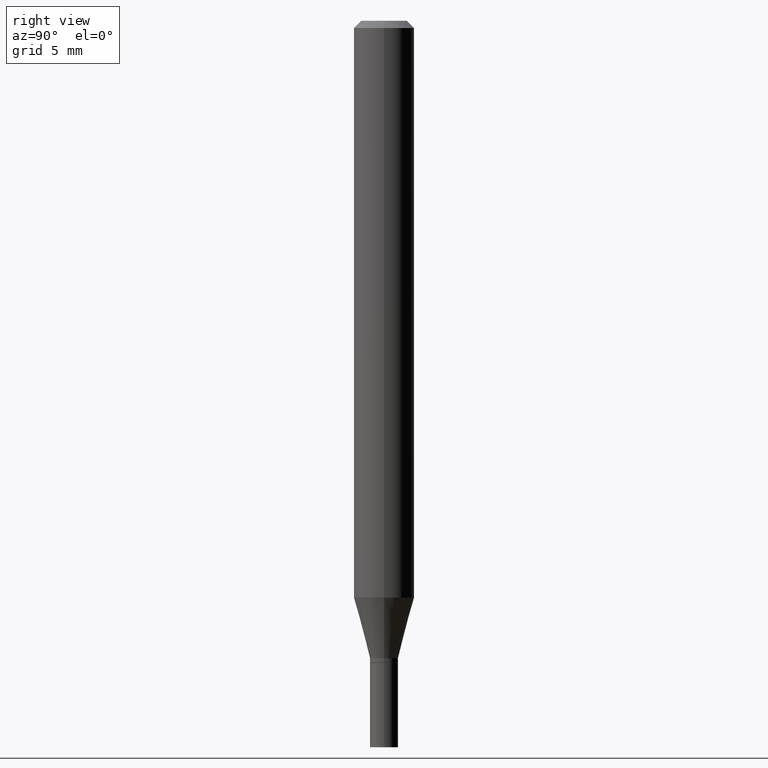
[diagram: clean part render]
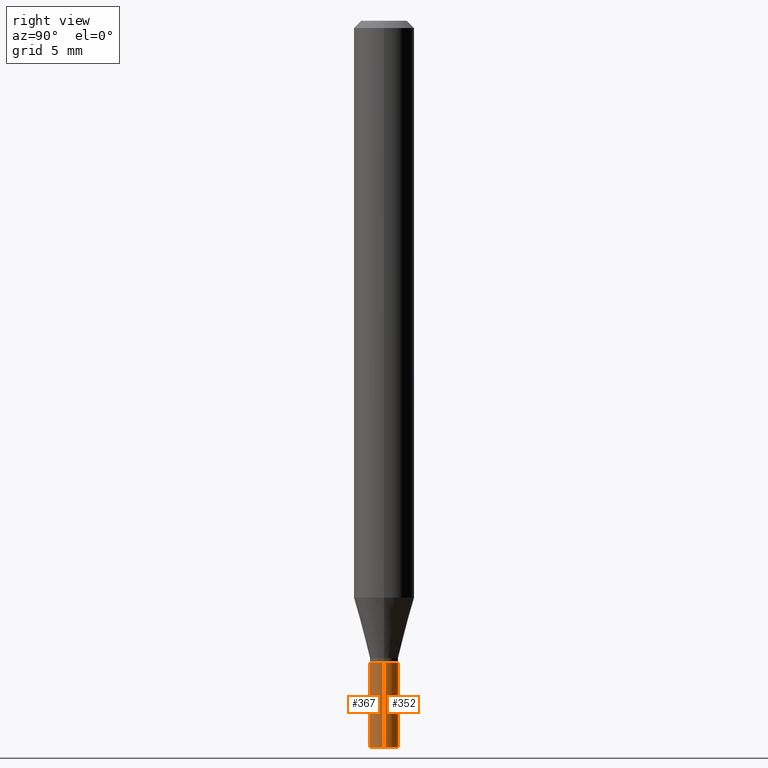
[diagram: same view with one multi-face feature highlighted, each face labeled with its STEP entity id]
A machine part, right view. The highlighted faces form ONE feature: a constant-radius fillet chain: 2 tangent blend faces with common blend radius 0.7366 mm. The faces share edges in the B-rep.
Their STEP definitions:
[1] entity #367 (Cylinder):
#12 = DIRECTION ( 'NONE',  ( -2.445468806185136597E-29, 3.491481338843145583E-15, 1.000000000000000000 ) ) ;
#30 = CARTESIAN_POINT ( 'NONE',  ( -0.02900000000000000147, -4.727405738414936275E-15, -1.326000000000000290 ) ) ;
#31 = DIRECTION ( 'NONE',  ( 1.000000000000000000, -6.982962677686265922E-15, 0.000000000000000000 ) ) ;
#33 = CARTESIAN_POINT ( 'NONE',  ( 0.02900000000000000147, -4.832210172958914360E-15, -1.326000000000000290 ) ) ;
#38 = EDGE_LOOP ( 'NONE', ( #296, #205, #95, #102 ) ) ;
#54 = DIRECTION ( 'NONE',  ( -2.445468806185136877E-29, 3.491481338843145188E-15, 1.000000000000000000 ) ) ;
#70 = CARTESIAN_POINT ( 'NONE',  ( -0.02900000000000000147, 2.060573933704290644E-16, -1.426491176173922626E-30 ) ) ;
#86 = CARTESIAN_POINT ( 'NONE',  ( -0.02900000000000000147, -4.727405738414936275E-15, -1.500000000000000222 ) ) ;
#87 = VERTEX_POINT ( 'NONE', #30 ) ;
#93 = FACE_OUTER_BOUND ( 'NONE', #38, .T. ) ;
#95 = ORIENTED_EDGE ( 'NONE', *, *, #319, .T. ) ;
#102 = ORIENTED_EDGE ( 'NONE', *, *, #309, .F. ) ;
#116 = CARTESIAN_POINT ( 'NONE',  ( 0.02900000000000000147, -2.025059176529017356E-16, 1.414091264980821422E-30 ) ) ;
#123 = CARTESIAN_POINT ( 'NONE',  ( 0.000000000000000000, 0.000000000000000000, 0.000000000000000000 ) ) ;
#129 = AXIS2_PLACEMENT_3D ( 'NONE', #392, #357, #31 ) ;
#131 = VERTEX_POINT ( 'NONE', #323 ) ;
#138 = VERTEX_POINT ( 'NONE', #33 ) ;
#144 = VECTOR ( 'NONE', #54, 39.37007874015748143 ) ;
#170 = CIRCLE ( 'NONE', #351, 0.02900000000000000147 ) ;
#187 = DIRECTION ( 'NONE',  ( -2.445468806185136877E-29, 3.491481338843145188E-15, 1.000000000000000000 ) ) ;
#203 = AXIS2_PLACEMENT_3D ( 'NONE', #123, #340, #272 ) ;
#204 = VECTOR ( 'NONE', #187, 39.37007874015748143 ) ;
#205 = ORIENTED_EDGE ( 'NONE', *, *, #446, .T. ) ;
#232 = LINE ( 'NONE', #116, #144 ) ;
#240 = CARTESIAN_POINT ( 'NONE',  ( 3.242691637001491818E-29, -4.629704255306012058E-15, -1.326000000000000290 ) ) ;
#272 = DIRECTION ( 'NONE',  ( 1.000000000000000000, -6.982962677686266711E-15, 4.876176775795935793E-29 ) ) ;
#282 = CIRCLE ( 'NONE', #129, 0.02900000000000000147 ) ;
#296 = ORIENTED_EDGE ( 'NONE', *, *, #436, .F. ) ;
#309 = EDGE_CURVE ( 'NONE', #87, #138, #170, .T. ) ;
#319 = EDGE_CURVE ( 'NONE', #131, #138, #232, .T. ) ;
#323 = CARTESIAN_POINT ( 'NONE',  ( 0.02900000000000000147, -5.439727925917620479E-15, -1.500000000000000222 ) ) ;
#340 = DIRECTION ( 'NONE',  ( -2.445468806185136597E-29, 3.491481338843145583E-15, 1.000000000000000000 ) ) ;
#348 = VERTEX_POINT ( 'NONE', #86 ) ;
#351 = AXIS2_PLACEMENT_3D ( 'NONE', #240, #12, #410 ) ;
#357 = DIRECTION ( 'NONE',  ( -2.445468806185136597E-29, 3.491481338843145583E-15, 1.000000000000000000 ) ) ;
#361 = LINE ( 'NONE', #70, #204 ) ;
#367 = ADVANCED_FACE ( 'NONE', ( #93 ), #444, .T. ) ;
#392 = CARTESIAN_POINT ( 'NONE',  ( 3.668203209277704895E-29, -5.237222008264718177E-15, -1.500000000000000222 ) ) ;
#410 = DIRECTION ( 'NONE',  ( 1.000000000000000000, -6.982962677686265922E-15, 0.000000000000000000 ) ) ;
#436 = EDGE_CURVE ( 'NONE', #348, #87, #361, .T. ) ;
#444 = CYLINDRICAL_SURFACE ( 'NONE', #203, 0.02900000000000000147 ) ;
#446 = EDGE_CURVE ( 'NONE', #348, #131, #282, .T. ) ;
[2] entity #352 (Cylinder):
#25 = ORIENTED_EDGE ( 'NONE', *, *, #319, .F. ) ;
#28 = CARTESIAN_POINT ( 'NONE',  ( 3.242691637001491818E-29, -4.629704255306012058E-15, -1.326000000000000290 ) ) ;
#30 = CARTESIAN_POINT ( 'NONE',  ( -0.02900000000000000147, -4.727405738414936275E-15, -1.326000000000000290 ) ) ;
#33 = CARTESIAN_POINT ( 'NONE',  ( 0.02900000000000000147, -4.832210172958914360E-15, -1.326000000000000290 ) ) ;
#34 = CIRCLE ( 'NONE', #111, 0.02900000000000000147 ) ;
#54 = DIRECTION ( 'NONE',  ( -2.445468806185136877E-29, 3.491481338843145188E-15, 1.000000000000000000 ) ) ;
#70 = CARTESIAN_POINT ( 'NONE',  ( -0.02900000000000000147, 2.060573933704290644E-16, -1.426491176173922626E-30 ) ) ;
#86 = CARTESIAN_POINT ( 'NONE',  ( -0.02900000000000000147, -4.727405738414936275E-15, -1.500000000000000222 ) ) ;
#87 = VERTEX_POINT ( 'NONE', #30 ) ;
#92 = EDGE_CURVE ( 'NONE', #131, #348, #34, .T. ) ;
#111 = AXIS2_PLACEMENT_3D ( 'NONE', #462, #145, #393 ) ;
#116 = CARTESIAN_POINT ( 'NONE',  ( 0.02900000000000000147, -2.025059176529017356E-16, 1.414091264980821422E-30 ) ) ;
#124 = EDGE_CURVE ( 'NONE', #138, #87, #164, .T. ) ;
#131 = VERTEX_POINT ( 'NONE', #323 ) ;
#138 = VERTEX_POINT ( 'NONE', #33 ) ;
#144 = VECTOR ( 'NONE', #54, 39.37007874015748143 ) ;
#145 = DIRECTION ( 'NONE',  ( -2.445468806185136597E-29, 3.491481338843145583E-15, 1.000000000000000000 ) ) ;
#164 = CIRCLE ( 'NONE', #416, 0.02900000000000000147 ) ;
#166 = DIRECTION ( 'NONE',  ( 1.000000000000000000, -6.982962677686266711E-15, 4.876176775795935793E-29 ) ) ;
#187 = DIRECTION ( 'NONE',  ( -2.445468806185136877E-29, 3.491481338843145188E-15, 1.000000000000000000 ) ) ;
#204 = VECTOR ( 'NONE', #187, 39.37007874015748143 ) ;
#211 = AXIS2_PLACEMENT_3D ( 'NONE', #229, #274, #166 ) ;
#214 = DIRECTION ( 'NONE',  ( 1.000000000000000000, -6.982962677686265922E-15, 0.000000000000000000 ) ) ;
#229 = CARTESIAN_POINT ( 'NONE',  ( 0.000000000000000000, 0.000000000000000000, 0.000000000000000000 ) ) ;
#232 = LINE ( 'NONE', #116, #144 ) ;
#235 = FACE_OUTER_BOUND ( 'NONE', #445, .T. ) ;
#244 = ORIENTED_EDGE ( 'NONE', *, *, #436, .T. ) ;
#274 = DIRECTION ( 'NONE',  ( -2.445468806185136597E-29, 3.491481338843145583E-15, 1.000000000000000000 ) ) ;
#278 = CYLINDRICAL_SURFACE ( 'NONE', #211, 0.02900000000000000147 ) ;
#280 = ORIENTED_EDGE ( 'NONE', *, *, #124, .F. ) ;
#319 = EDGE_CURVE ( 'NONE', #131, #138, #232, .T. ) ;
#323 = CARTESIAN_POINT ( 'NONE',  ( 0.02900000000000000147, -5.439727925917620479E-15, -1.500000000000000222 ) ) ;
#348 = VERTEX_POINT ( 'NONE', #86 ) ;
#352 = ADVANCED_FACE ( 'NONE', ( #235 ), #278, .T. ) ;
#356 = DIRECTION ( 'NONE',  ( -2.445468806185136597E-29, 3.491481338843145583E-15, 1.000000000000000000 ) ) ;
#361 = LINE ( 'NONE', #70, #204 ) ;
#393 = DIRECTION ( 'NONE',  ( 1.000000000000000000, -6.982962677686265922E-15, 0.000000000000000000 ) ) ;
#415 = ORIENTED_EDGE ( 'NONE', *, *, #92, .T. ) ;
#416 = AXIS2_PLACEMENT_3D ( 'NONE', #28, #356, #214 ) ;
#436 = EDGE_CURVE ( 'NONE', #348, #87, #361, .T. ) ;
#445 = EDGE_LOOP ( 'NONE', ( #415, #244, #280, #25 ) ) ;
#462 = CARTESIAN_POINT ( 'NONE',  ( 3.668203209277704895E-29, -5.237222008264718177E-15, -1.500000000000000222 ) ) ;